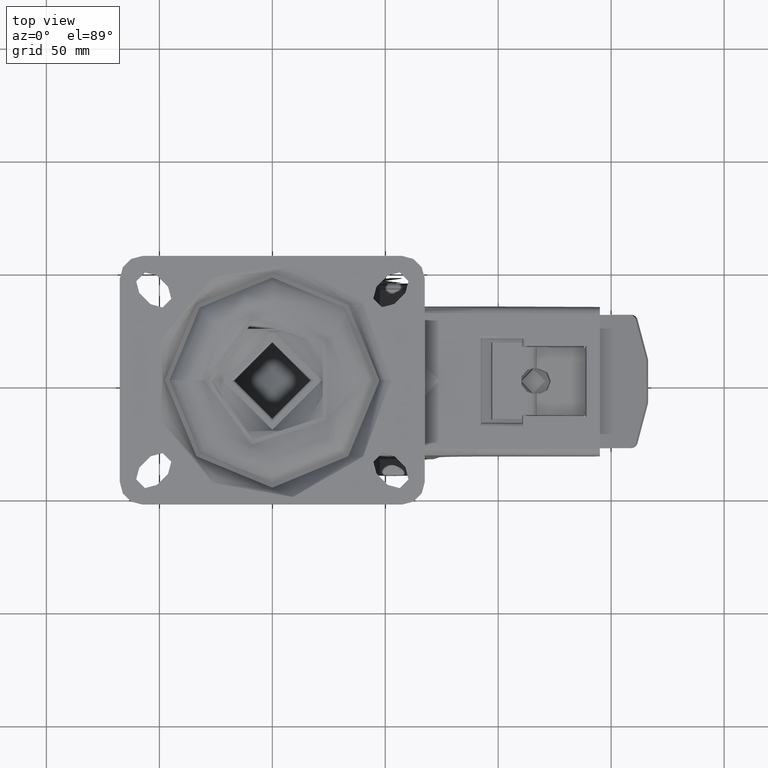
[diagram: clean part render]
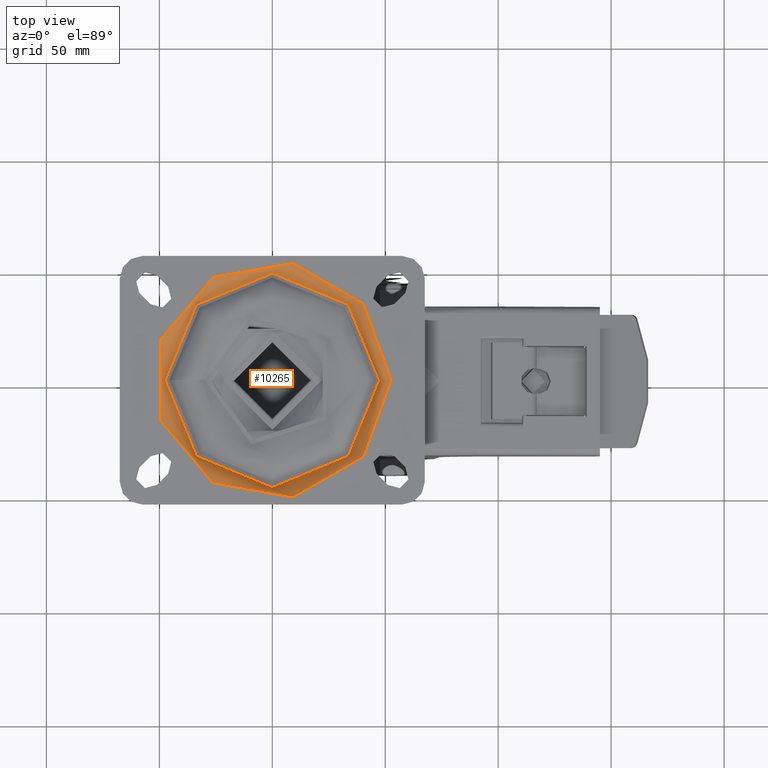
[diagram: same view with one face highlighted and labeled with its STEP entity id]
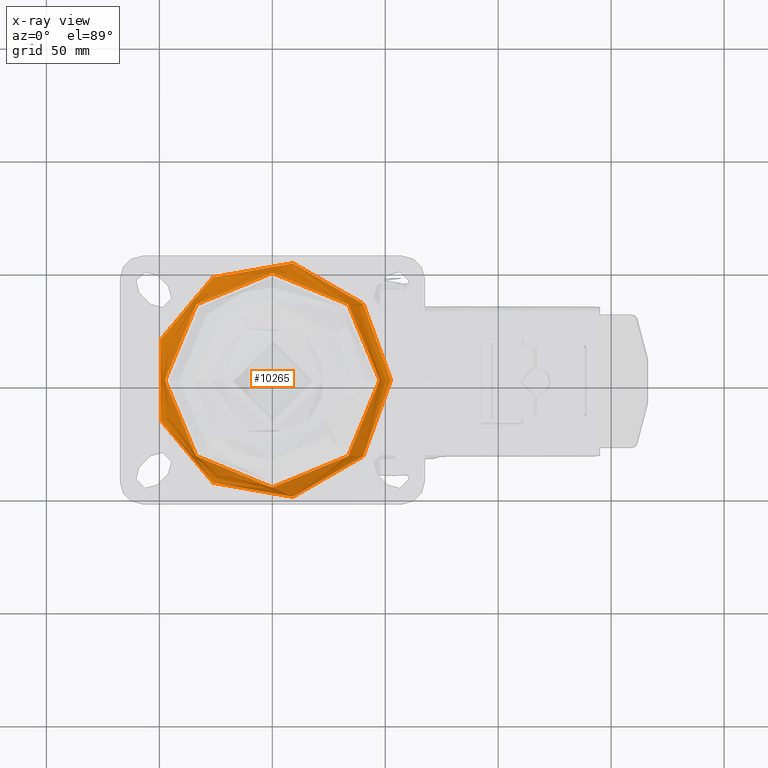
[diagram: x-ray of the same camera — body ghosted, the highlighted face saturated]
A machine part, top view. The second image highlights one B-rep face of the part: STEP entity #10265.
The next image is the same camera in x-ray: the body ghosted, the highlighted face saturated — about 0% of this face is hidden behind the body in this view.
In plain terms, the highlighted toroidal blend (fillet) surface has major radius 52.4937 mm and minor (blend) radius 5 mm.
Its self-contained STEP definition (entity closure, byte-faithful):
#1092=TOROIDAL_SURFACE('',#11112,52.4937460888595,5.);
#1137=FACE_OUTER_BOUND('',#1740,.T.);
#1740=EDGE_LOOP('',(#7060,#7061,#7062,#7063));
#4089=CIRCLE('',#11113,47.5);
#4090=CIRCLE('',#11114,5.);
#4091=CIRCLE('',#11115,52.4937460888595);
#4542=VERTEX_POINT('',#15341);
#4543=VERTEX_POINT('',#15343);
#5528=EDGE_CURVE('',#4542,#4542,#4089,.T.);
#5529=EDGE_CURVE('',#4542,#4543,#4090,.T.);
#5530=EDGE_CURVE('',#4543,#4543,#4091,.T.);
#7060=ORIENTED_EDGE('',*,*,#5528,.T.);
#7061=ORIENTED_EDGE('',*,*,#5529,.T.);
#7062=ORIENTED_EDGE('',*,*,#5530,.T.);
#7063=ORIENTED_EDGE('',*,*,#5529,.F.);
#10265=ADVANCED_FACE('',(#1137),#1092,.T.);
#11112=AXIS2_PLACEMENT_3D('',#15340,#12290,#12291);
#11113=AXIS2_PLACEMENT_3D('',#15342,#12292,#12293);
#11114=AXIS2_PLACEMENT_3D('',#15344,#12294,#12295);
#11115=AXIS2_PLACEMENT_3D('',#15345,#12296,#12297);
#12290=DIRECTION('center_axis',(0.,0.,1.));
#12291=DIRECTION('ref_axis',(-1.,-9.91644751508222E-17,0.));
#12292=DIRECTION('center_axis',(0.,0.,-1.));
#12293=DIRECTION('ref_axis',(-1.,0.,0.));
#12294=DIRECTION('center_axis',(-2.21629155065558E-16,1.,0.));
#12295=DIRECTION('ref_axis',(1.,2.21629155065558E-16,0.));
#12296=DIRECTION('center_axis',(0.,0.,1.));
#12297=DIRECTION('ref_axis',(-1.,-9.91644751508222E-17,0.));
#15340=CARTESIAN_POINT('Origin',(0.,0.,-5.));
#15341=CARTESIAN_POINT('',(47.5,1.0527384865614E-14,-4.75));
#15342=CARTESIAN_POINT('Origin',(0.,0.,-4.75));
#15343=CARTESIAN_POINT('',(52.4937460888595,1.16341445918999E-14,0.));
#15344=CARTESIAN_POINT('Origin',(52.4937460888595,1.16341445918998E-14,
-5.));
#15345=CARTESIAN_POINT('Origin',(0.,0.,0.));